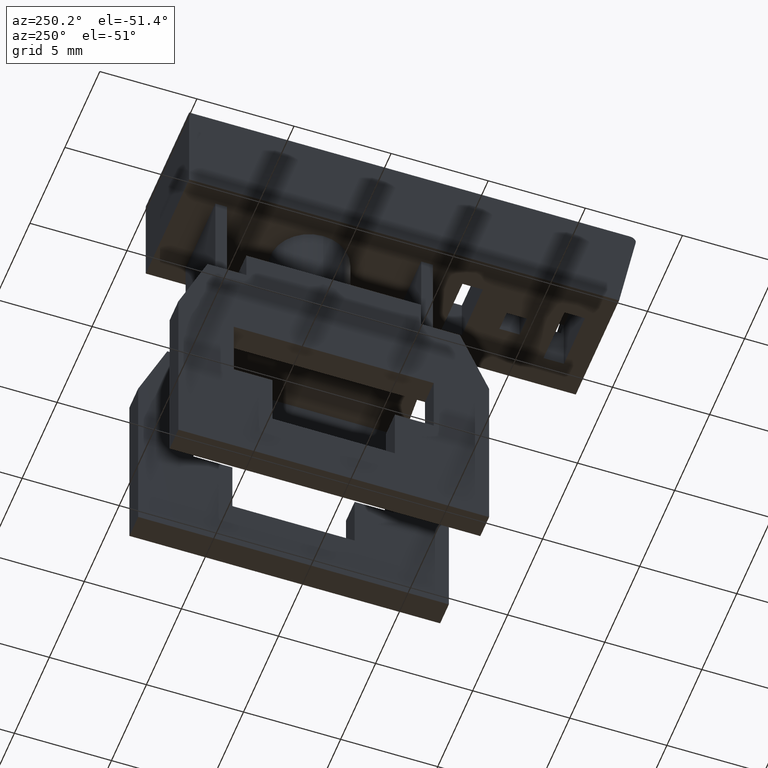
[diagram: clean part render]
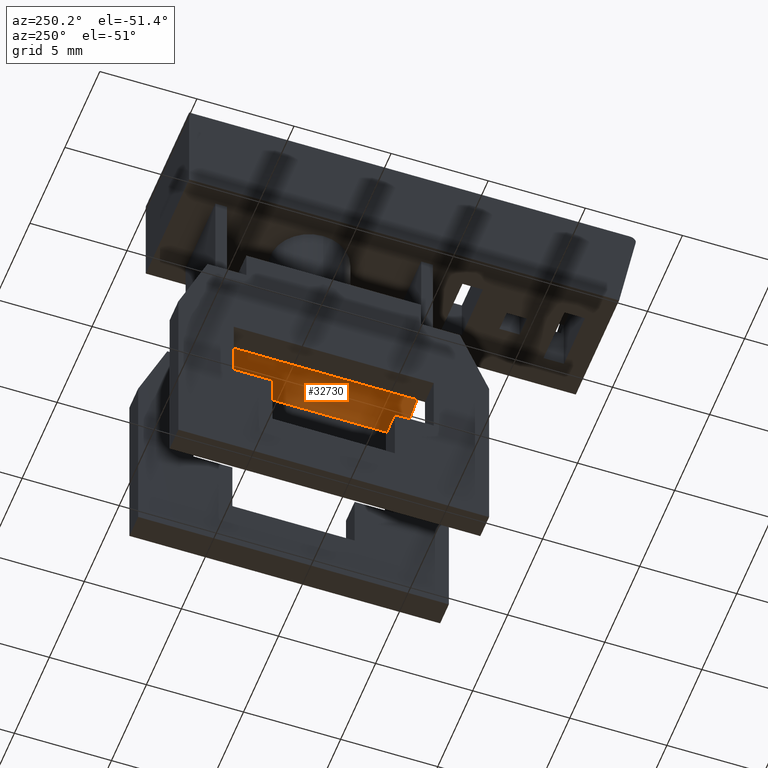
[diagram: same view with one face highlighted and labeled with its STEP entity id]
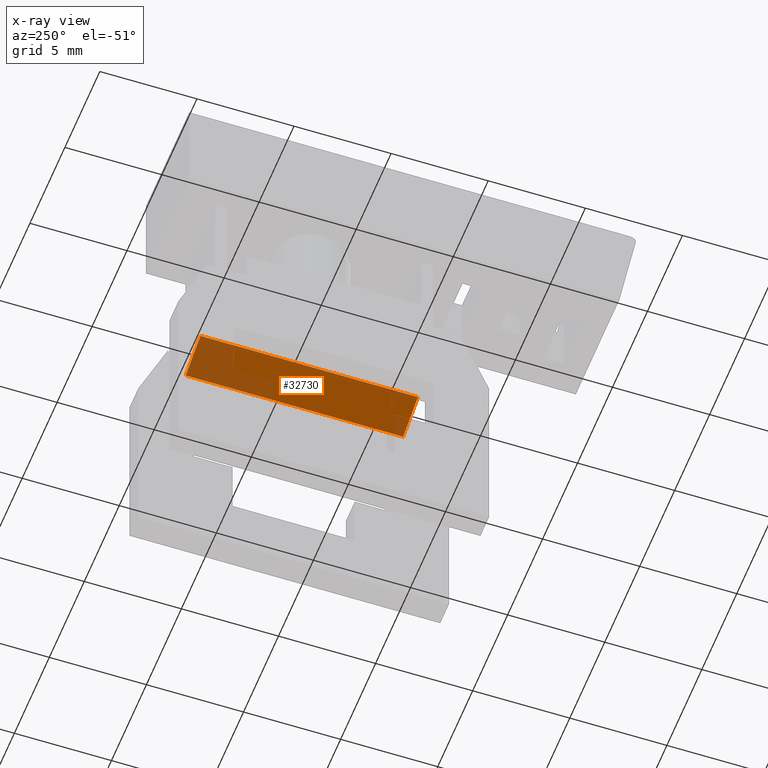
[diagram: x-ray of the same camera — body ghosted, the highlighted face saturated]
A machine part, auxiliary view. The second image highlights one B-rep face of the part: STEP entity #32730.
The next image is the same camera in x-ray: the body ghosted, the highlighted face saturated — about 36% of this face is hidden behind the body in this view.
In plain terms, the highlighted planar face has unit normal (-0.2588, 0, -0.9659).
Its self-contained STEP definition (entity closure, byte-faithful):
#30310=CARTESIAN_POINT('',(-1.37499999999997,16.3473754006923,13.6));
#30320=VERTEX_POINT('',#30310);
#30590=CARTESIAN_POINT('',(-1.37500000000001,16.3473754006923,
2.39999999999999));
#30600=VERTEX_POINT('',#30590);
#30630=CARTESIAN_POINT('',(-1.37500000000001,16.3473754006923,
7.99999999999998));
#30640=DIRECTION('',(0.,0.,1.));
#30650=VECTOR('',#30640,1.);
#30660=LINE('',#30630,#30650);
#30670=EDGE_CURVE('',#30600,#30320,#30660,.T.);
#31800=CARTESIAN_POINT('',(-34.3479463281993,25.1824497414081,13.6));
#31810=DIRECTION('',(0.965925826289068,-0.25881904510252,0.));
#31820=VECTOR('',#31810,1.);
#31830=LINE('',#31800,#31820);
#31840=CARTESIAN_POINT('',(-3.5000000000002,16.9167674346085,13.6));
#31850=VERTEX_POINT('',#31840);
#31860=EDGE_CURVE('',#31850,#30320,#31830,.T.);
#32130=CARTESIAN_POINT('',(-3.50000000000021,16.9167674346085,
7.99999999999998));
#32140=DIRECTION('',(0.,0.,1.));
#32150=VECTOR('',#32140,1.);
#32160=LINE('',#32130,#32150);
#32170=CARTESIAN_POINT('',(-3.5000000000002,16.9167674346085,
2.39999999999999));
#32180=VERTEX_POINT('',#32170);
#32190=EDGE_CURVE('',#32180,#31850,#32160,.T.);
#32430=CARTESIAN_POINT('',(-34.3479463281993,25.1824497414081,
2.39999999999998));
#32440=DIRECTION('',(0.965925826289068,-0.25881904510252,0.));
#32450=VECTOR('',#32440,1.);
#32460=LINE('',#32430,#32450);
#32470=EDGE_CURVE('',#32180,#30600,#32460,.T.);
#32620=CARTESIAN_POINT('',(-1.37500000000001,16.3473754006923,
2.39999999999998));
#32630=DIRECTION('',(-0.25881904510252,-0.965925826289068,0.));
#32640=DIRECTION('',(0.965925826289068,-0.25881904510252,0.));
#32650=AXIS2_PLACEMENT_3D('',#32620,#32630,#32640);
#32660=PLANE('',#32650);
#32670=ORIENTED_EDGE('',*,*,#32190,.F.);
#32680=ORIENTED_EDGE('',*,*,#31860,.F.);
#32690=ORIENTED_EDGE('',*,*,#30670,.T.);
#32700=ORIENTED_EDGE('',*,*,#32470,.T.);
#32710=EDGE_LOOP('',(#32700,#32690,#32680,#32670));
#32720=FACE_OUTER_BOUND('',#32710,.T.);
#32730=ADVANCED_FACE('',(#32720),#32660,.T.);